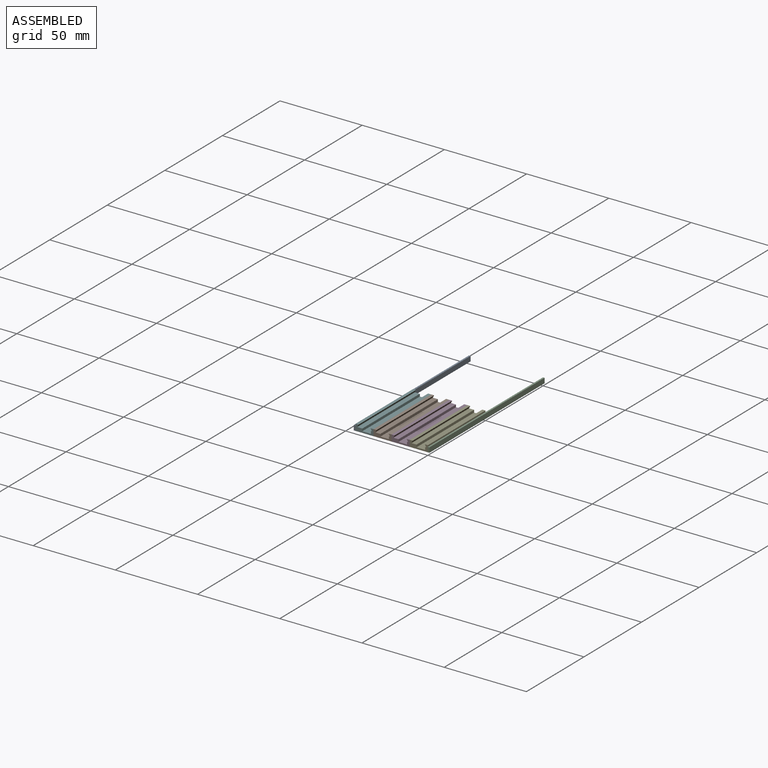
[diagram: assembled view]
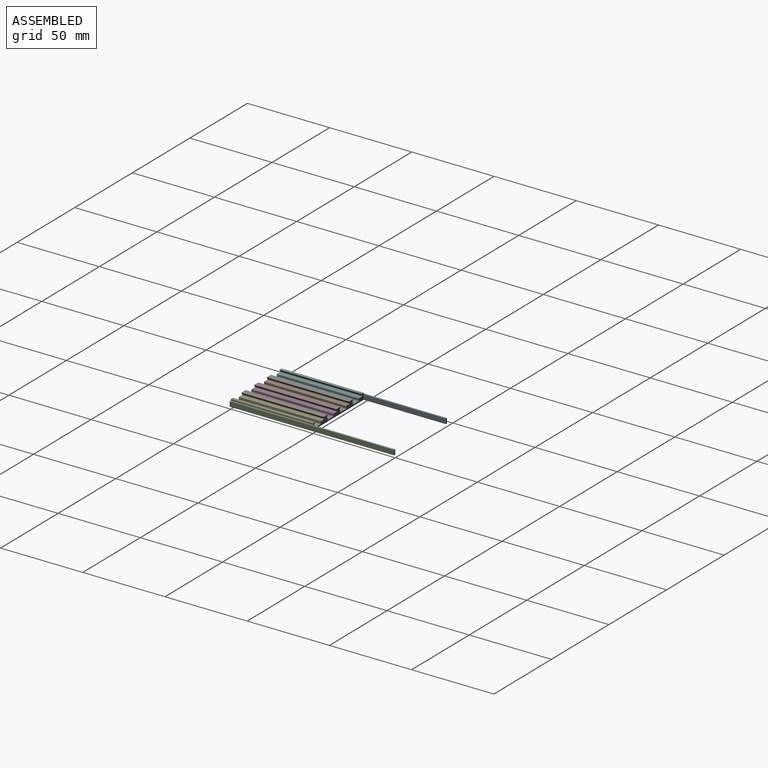
[diagram: assembled view, second angle]
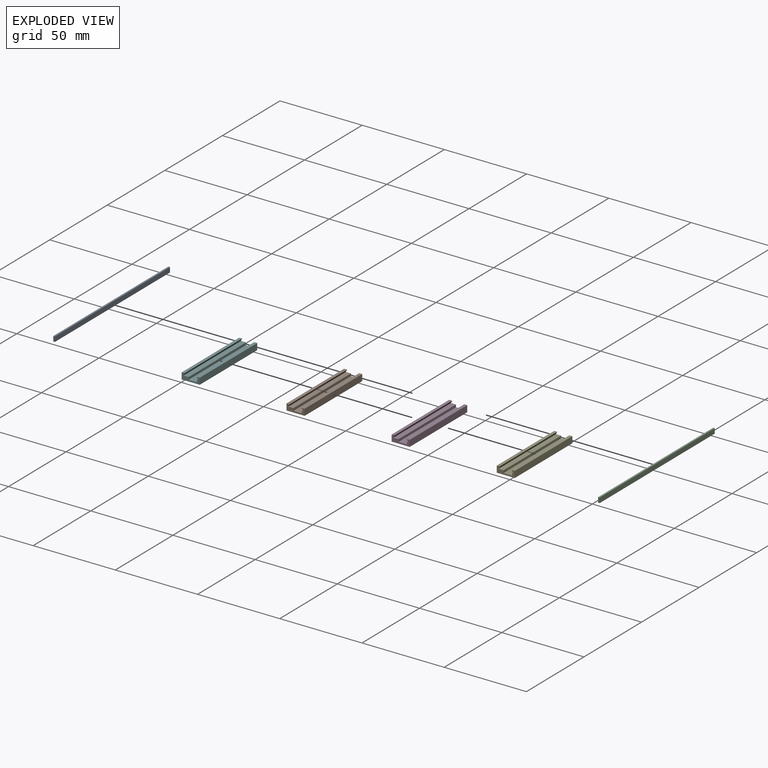
[diagram: exploded view]
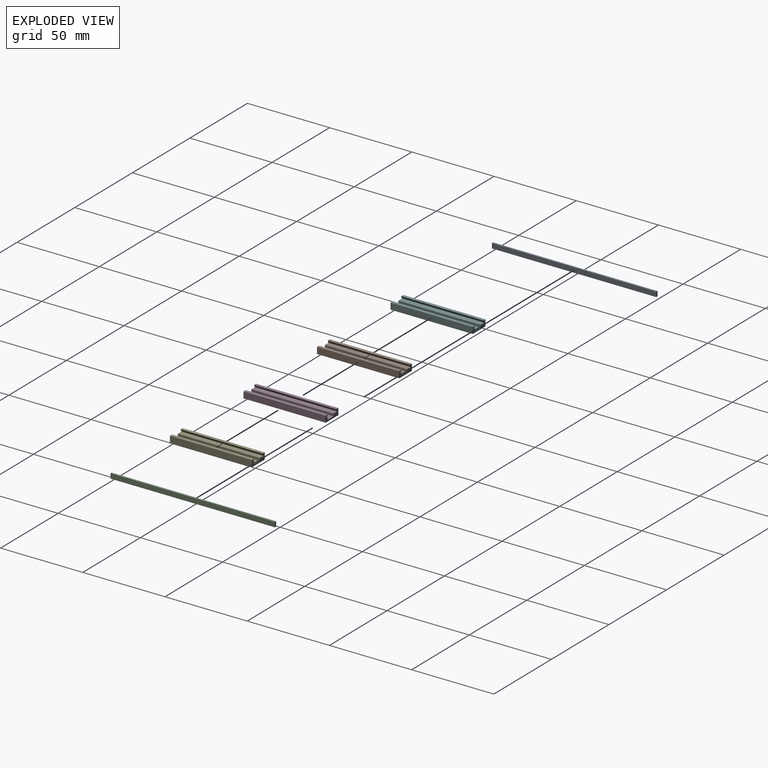
[diagram: exploded view, second angle]
ASSEMBLY  parts=6 mates=5
PART A: 6 faces, bbox 1x100x3 mm
  f0: plane 100x3mm, normal (-1,0,0), area 300mm2, adj f1,f3,f4,f5
  f1: plane 100x1mm, normal (0,0,-1), area 100mm2, adj f0,f2,f4,f5
  f2: plane 100x3mm, normal (1,0,0), area 300mm2, adj f1,f3,f4,f5
  f3: plane 100x1mm, normal (0,0,1), area 100mm2, adj f0,f2,f4,f5
  f4: plane 3x1mm, normal (0,-1,0), area 3mm2, adj f0,f1,f2,f3
  f5: plane 3x1mm, normal (0,1,0), area 3mm2, adj f0,f1,f2,f3
PART B: 16 faces, bbox 11x50x3.9 mm
  f0: plane 50x1.84mm, normal (0,0,1), area 92.1mm2, adj f1,f13,f14,f15
  f1: plane 50x3.9mm, normal (-1,0,0), area 195mm2, adj f0,f2,f14,f15
  f2: plane 50x11mm, normal (0,0,-1), area 550mm2, adj f1,f3,f14,f15
  f3: plane 50x3.9mm, normal (1,0,0), area 195mm2, adj f2,f4,f14,f15
  f4: plane 50x1.84mm, normal (0,0,1), area 92.1mm2, adj f3,f5,f14,f15
  f5: plane 50x1.2mm, normal (-0.87,0,-0.5), area 69.3mm2, adj f4,f6,f14,f15
  f6: plane 50x0.3mm, normal (-1,0,0), area 15mm2, adj f5,f7,f14,f15
  f7: plane 50x0.5mm, normal (0,0,1), area 25mm2, adj f6,f8,f14,f15
  f8: plane 50x1.5mm, normal (-1,0,0), area 75mm2, adj f7,f9,f14,f15
  f9: plane 50x5.2mm, normal (0,0,1), area 260mm2, adj f8,f10,f14,f15
  f10: plane 50x1.5mm, normal (1,0,0), area 75mm2, adj f9,f11,f14,f15
  f11: plane 50x3mm, normal (0,0,1), area 150mm2, adj f10,f12,f14,f15
  f12: plane 50x0.3mm, normal (1,0,0), area 15mm2, adj f11,f13,f14,f15
  f13: plane 50x1.2mm, normal (0.87,0,-0.5), area 69.3mm2, adj f0,f12,f14,f15
  f14: plane 11x3.9mm, normal (0,-1,0), area 22.9mm2, adj f0,f1,f2,f3,f4,f5,f6,f7
  f15: plane 11x3.9mm, normal (0,1,0), area 22.9mm2, adj f0,f1,f2,f3,f4,f5,f6,f7
PART C: same geometry as A
PART D: same geometry as B
PART E: same geometry as B
PART F: same geometry as B
PLACE A t=(-45,50,0)mm
PLACE B t=(-33,0,0)mm
PLACE C t=(0,50,0)mm
PLACE D t=(-22,0,0)mm
PLACE E t=(-11,0,0)mm
PLACE F t=(-44,0,0)mm
MATE fastened E.f3 <-> C.f0  axis (1,0,0) through (0,-50,0)mm
MATE fastened A.f2 <-> F.f1  axis (1,0,0) through (-44,-50,0)mm
MATE fastened D.f1 <-> B.f3  axis (-1,0,0) through (-22,-50,0)mm
MATE fastened F.f3 <-> B.f1  axis (1,0,0) through (-33,-50,0)mm
MATE fastened D.f3 <-> E.f1  axis (1,0,0) through (-11,-50,0)mm
